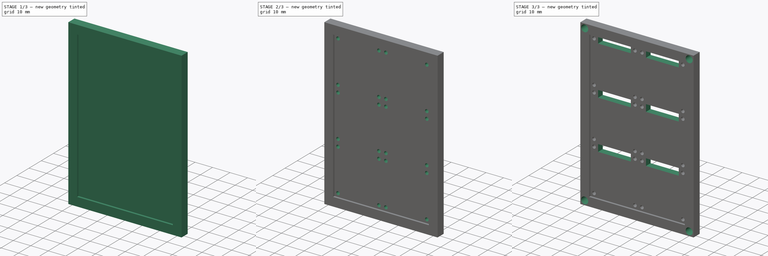
[diagram: build sequence overview — one tinted view per stage of 3, left to right]
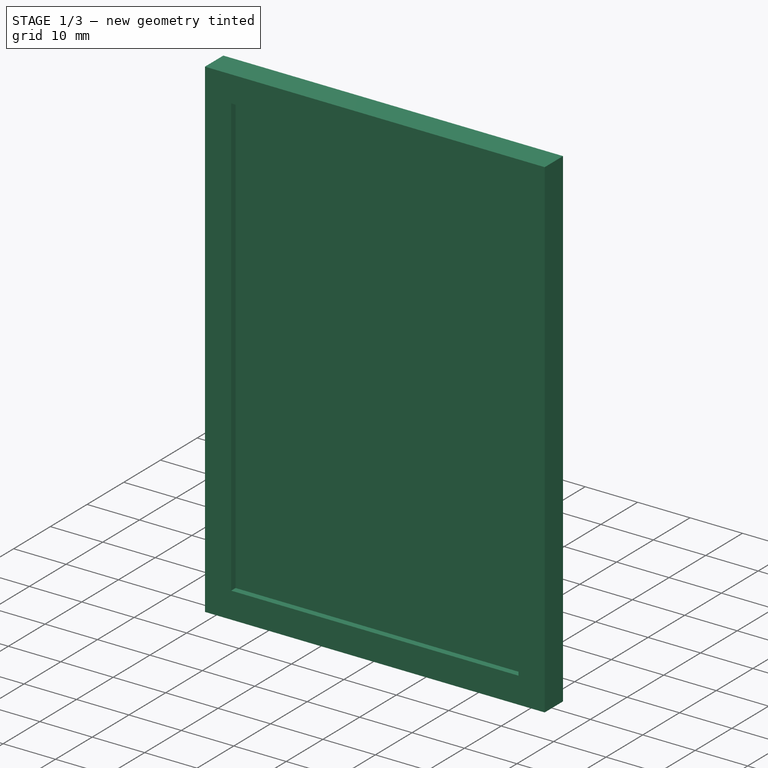
[diagram: stage 1 of 3 — iso view after this stage's code; geometry added in this stage tinted green]
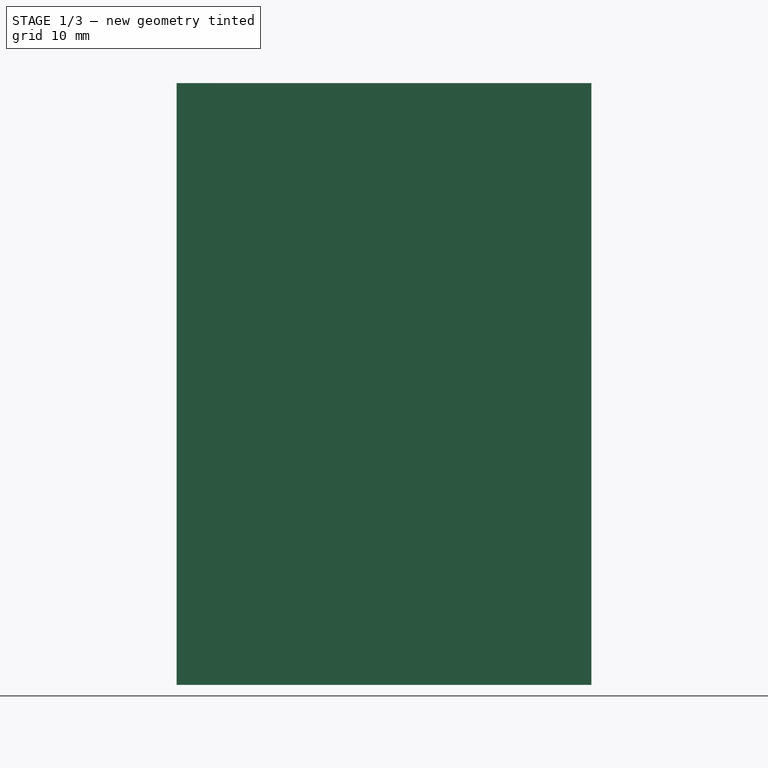
[diagram: stage 1 of 3 — front view after this stage's code; geometry added in this stage tinted green]
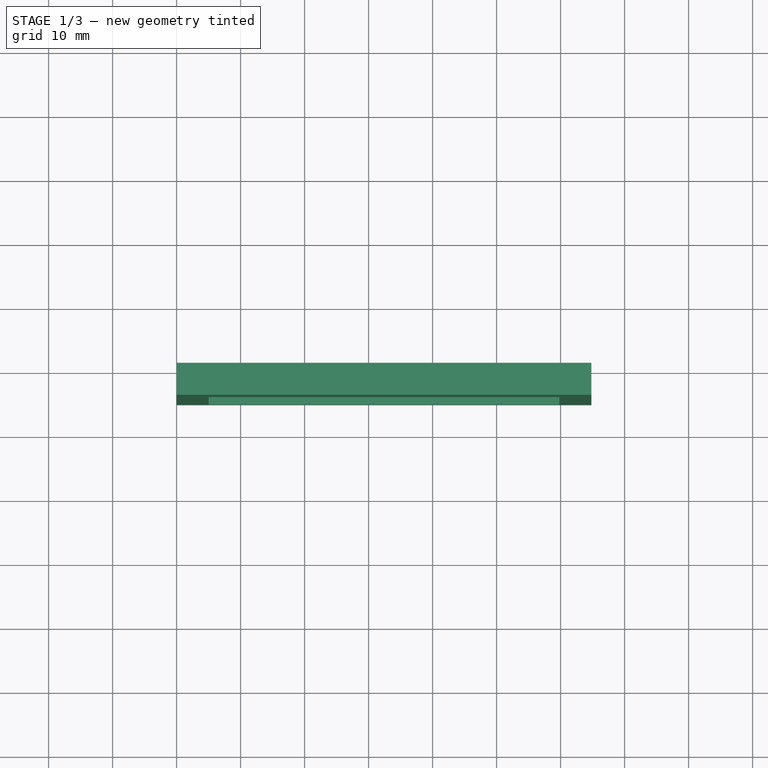
[diagram: stage 1 of 3 — top view after this stage's code; geometry added in this stage tinted green]
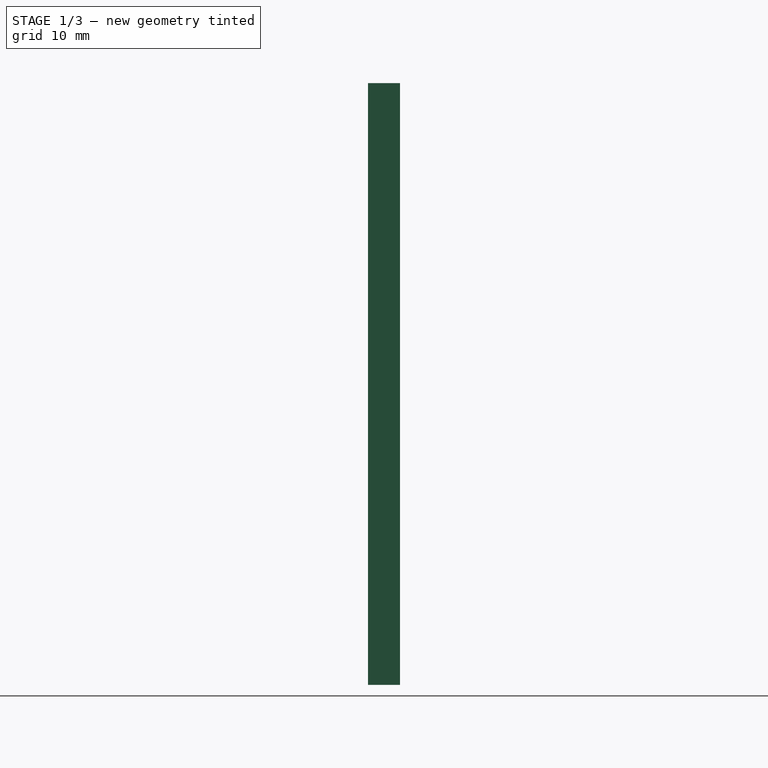
[diagram: stage 1 of 3 — right view after this stage's code; geometry added in this stage tinted green]
FCSTD DOCUMENT  (FreeCAD 0.20R29603 (Git))
Label: displayHolder
License: All rights reserved
LicenseURL: http://en.wikipedia.org/wiki/All_rights_reserved
objects: Sketcher::SketchObject×5, PartDesign::Pocket×4, PartDesign::Pad×1, PartDesign::Body×1
note: 16 computed .brp shape members not serialized (recipe doc carries the construction recipe); baked Part::Feature solids carry a one-line shape summary decoded from their .brp

FEATURE [Sketcher::SketchObject] Sketch
  FullyConstrained = true
  MapMode = 5
  Placement = pos=(0,0,0) rot=(1,0,0;1.5708rad)
  Support = -> [XZ_Plane]
  sketch-geometry (4):
    g0: LineSegment StartX=0 StartY=0 StartZ=0 EndX=64.8 EndY=0 EndZ=0
    g1: LineSegment StartX=64.8 StartY=0 StartZ=0 EndX=64.8 EndY=94 EndZ=0
    g2: LineSegment StartX=64.8 StartY=94 StartZ=0 EndX=0 EndY=94 EndZ=0
    g3: LineSegment StartX=0 StartY=94 StartZ=0 EndX=0 EndY=0 EndZ=0
  constraints (11):
    c: Coincident(g0,g1)
    c: Coincident(g1,g2)
    c: Coincident(g2,g3)
    c: Coincident(g3,g0)
    c: Horizontal(g0)
    c: Horizontal(g2)
    c: Vertical(g1)
    c: Vertical(g3)
    c: Coincident(g0,g-1)
    c: DistanceX(g2,g2) = 64.8
    c: DistanceY(g1,g1) = 94
FEATURE [PartDesign::Pad] Pad
  Direction = (0,-1,-2e-16)
  Length = 5
  Length2 = 10
  Placement = pos=(0,0,0) rot=(1,0,0;1.5708rad)
  Profile = -> Sketch
  ReferenceAxis = -> Sketch [N_Axis]
  Type = 0
FEATURE [Sketcher::SketchObject] Sketch001
  FullyConstrained = true
  MapMode = 5
  Placement = pos=(0,-5,-1.1e-15) rot=(1,0,0;1.5708rad)
  Support = -> [Pad]
  sketch-geometry (10):
    g0: LineSegment StartX=5 StartY=5 StartZ=0 EndX=32.4 EndY=5 EndZ=0
    g1: LineSegment StartX=5 StartY=33 StartZ=0 EndX=5 EndY=5 EndZ=0
    g2: LineSegment StartX=32.4 StartY=5 StartZ=0 EndX=59.8 EndY=5 EndZ=0
    g3: LineSegment StartX=59.8 StartY=5 StartZ=0 EndX=59.8 EndY=33 EndZ=0
    g4: LineSegment StartX=5 StartY=89 StartZ=0 EndX=32.4 EndY=89 EndZ=0
    g5: LineSegment StartX=5 StartY=61 StartZ=0 EndX=5 EndY=89 EndZ=0
    g6: LineSegment StartX=59.8 StartY=61 StartZ=0 EndX=59.8 EndY=89 EndZ=0
    g7: LineSegment StartX=59.8 StartY=33 StartZ=0 EndX=59.8 EndY=61 EndZ=0
    g8: LineSegment StartX=59.8 StartY=89 StartZ=0 EndX=32.4 EndY=89 EndZ=0
    g9: LineSegment StartX=5 StartY=61 StartZ=0 EndX=5 EndY=33 EndZ=0
  constraints (30):
    c: Coincident(g1,g0)
    c: Horizontal(g0)
    c: Vertical(g1)
    c: Coincident(g2,g3)
    c: Horizontal(g2)
    c: Vertical(g3)
    c: Coincident(g5,g4)
    c: Horizontal(g4)
    c: Vertical(g5)
    c: Vertical(g6)
    c: Coincident(g7,g3)
    c: DistanceY(g6,g6) = 28
    c: Equal(g6,g7)
    c: Coincident(g0,g2)
    c: Coincident(g8,g6)
    c: Coincident(g8,g4)
    c: Horizontal(g8)
    c: Vertical(g7)
    c: Coincident(g7,g6)
    c: DistanceX(g8,g8) = 27.4
    c: DistanceY(g-1,g0) = 5
    c: DistanceX(g-1,g0) = 5
    c: Equal(g6,g5)
    c: Equal(g1,g6)
    c: Equal(g8,g0)
    c: Equal(g0,g2)
    c: Equal(g2,g4)
    c: Equal(g3,g1)
    c: Coincident(g9,g5)
    c: Coincident(g9,g1)
FEATURE [PartDesign::Pocket] Pocket
  BaseFeature = -> Pad
  Direction = (0,1,2e-16)
  Length = 1.2
  Length2 = 5
  Placement = pos=(0,0,0) rot=(1,0,0;1.5708rad)
  Profile = -> Sketch001
  ReferenceAxis = -> Sketch001 [N_Axis]
  Type = 0
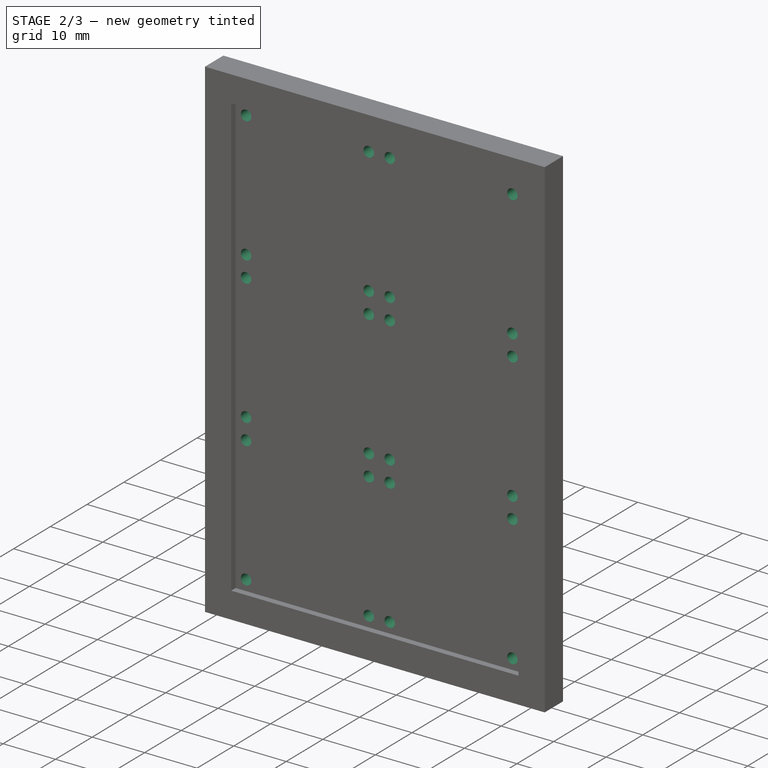
[diagram: stage 2 of 3 — iso view after this stage's code; geometry added in this stage tinted green]
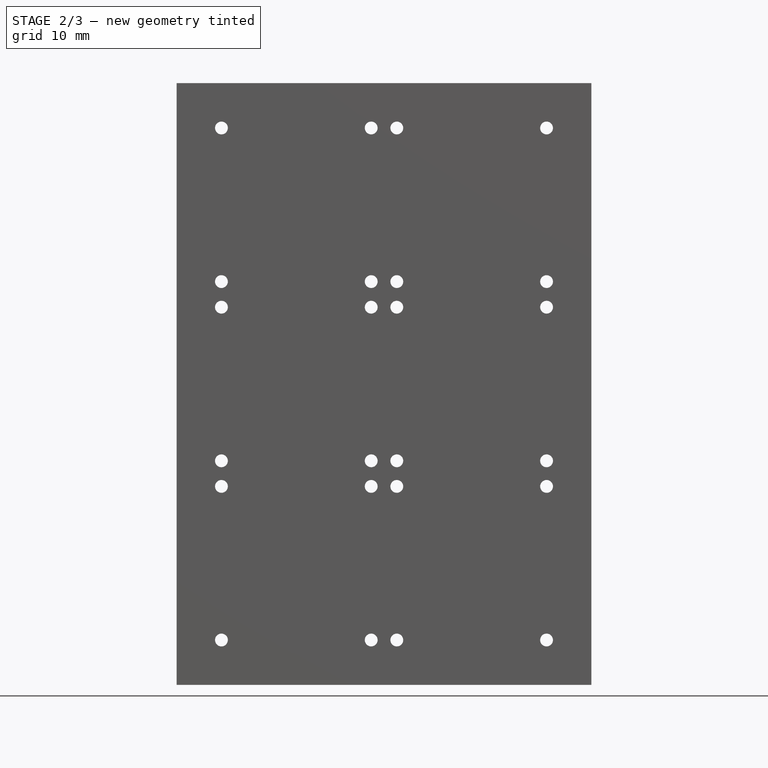
[diagram: stage 2 of 3 — front view after this stage's code; geometry added in this stage tinted green]
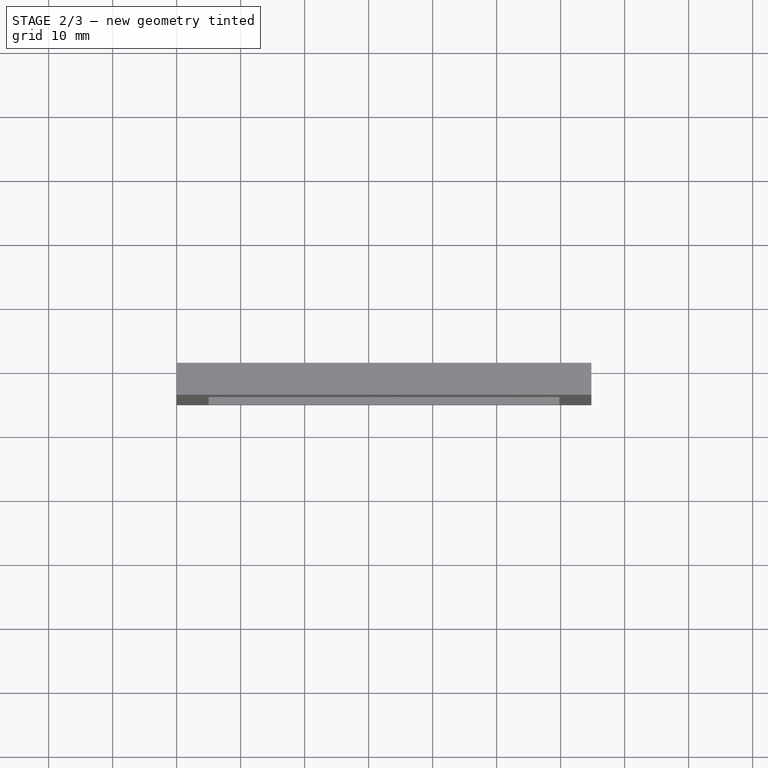
[diagram: stage 2 of 3 — top view after this stage's code; geometry added in this stage tinted green]
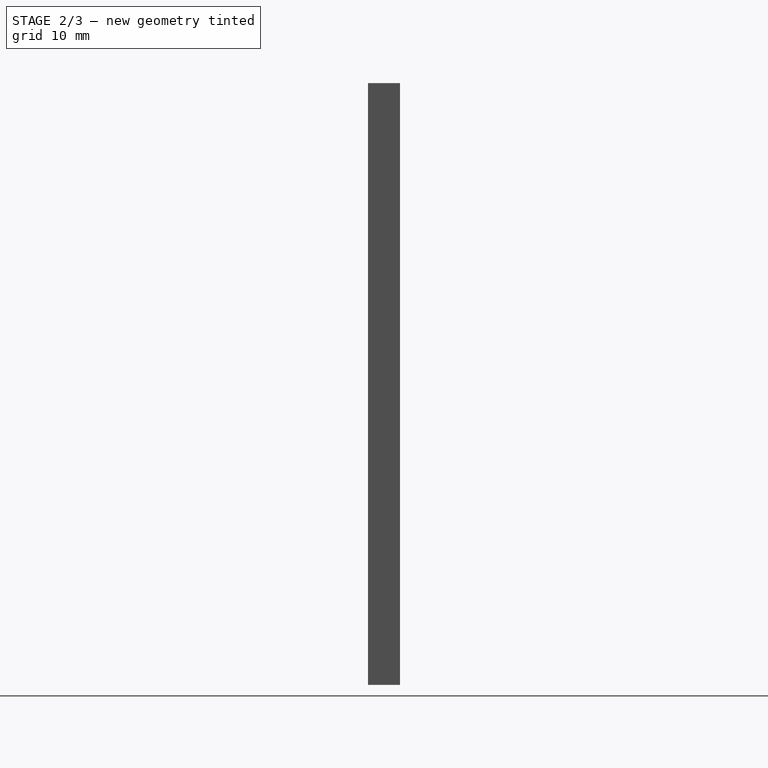
[diagram: stage 2 of 3 — right view after this stage's code; geometry added in this stage tinted green]
FEATURE [Sketcher::SketchObject] Sketch002
  ExternalGeometry = -> [Pocket]
  FullyConstrained = true
  MapMode = 5
  Placement = pos=(0,-3.8,-8e-16) rot=(1,0,0;1.5708rad)
  Support = -> [Pocket]
  sketch-geometry (48):
    g0: LineSegment StartX=7 StartY=7 StartZ=0 EndX=30.4 EndY=7 EndZ=0
    g1: LineSegment StartX=30.4 StartY=7 StartZ=0 EndX=30.4 EndY=31 EndZ=0
    g2: LineSegment StartX=30.4 StartY=31 StartZ=0 EndX=7 EndY=31 EndZ=0
    g3: LineSegment StartX=7 StartY=31 StartZ=0 EndX=7 EndY=7 EndZ=0
    g4: LineSegment StartX=34.4 StartY=7 StartZ=0 EndX=57.8 EndY=7 EndZ=0
    g5: LineSegment StartX=57.8 StartY=7 StartZ=0 EndX=57.8 EndY=31 EndZ=0
    g6: LineSegment StartX=57.8 StartY=31 StartZ=0 EndX=34.4 EndY=31 EndZ=0
    g7: LineSegment StartX=34.4 StartY=31 StartZ=0 EndX=34.4 EndY=7 EndZ=0
    g8: LineSegment StartX=34.4 StartY=35 StartZ=0 EndX=57.8 EndY=35 EndZ=0
    g9: LineSegment StartX=57.8 StartY=35 StartZ=0 EndX=57.8 EndY=59 EndZ=0
    g10: LineSegment StartX=57.8 StartY=59 StartZ=0 EndX=34.4 EndY=59 EndZ=0
    g11: LineSegment StartX=34.4 StartY=59 StartZ=0 EndX=34.4 EndY=35 EndZ=0
    g12: LineSegment StartX=34.4 StartY=63 StartZ=0 EndX=57.8 EndY=63 EndZ=0
    g13: LineSegment StartX=57.8 StartY=63 StartZ=0 EndX=57.8 EndY=87 EndZ=0
    g14: LineSegment StartX=57.8 StartY=87 StartZ=0 EndX=34.4 EndY=87 EndZ=0
    g15: LineSegment StartX=34.4 StartY=87 StartZ=0 EndX=34.4 EndY=63 EndZ=0
    g16: LineSegment StartX=30.4 StartY=63 StartZ=0 EndX=7 EndY=63 EndZ=0
    g17: LineSegment StartX=7 StartY=63 StartZ=0 EndX=7 EndY=87 EndZ=0
    g18: LineSegment StartX=7 StartY=87 StartZ=0 EndX=30.4 EndY=87 EndZ=0
    g19: LineSegment StartX=30.4 StartY=87 StartZ=0 EndX=30.4 EndY=63 EndZ=0
    g20: LineSegment StartX=30.4 StartY=35 StartZ=0 EndX=7 EndY=35 EndZ=0
    g21: LineSegment StartX=7 StartY=35 StartZ=0 EndX=7 EndY=59 EndZ=0
    g22: LineSegment StartX=7 StartY=59 StartZ=0 EndX=30.4 EndY=59 EndZ=0
    g23: LineSegment StartX=30.4 StartY=59 StartZ=0 EndX=30.4 EndY=35 EndZ=0
    g24: Circle CenterX=7 CenterY=87 CenterZ=0 NormalX=0 NormalY=0 NormalZ=1 AngleXU=0 Radius=1
    g25: Circle CenterX=30.4 CenterY=87 CenterZ=0 NormalX=0 NormalY=0 NormalZ=1 AngleXU=0 Radius=1
    g26: Circle CenterX=34.4 CenterY=87 CenterZ=0 NormalX=0 NormalY=0 NormalZ=1 AngleXU=0 Radius=1
    g27: Circle CenterX=57.8 CenterY=87 CenterZ=0 NormalX=0 NormalY=0 NormalZ=1 AngleXU=0 Radius=1
    g28: Circle CenterX=7 CenterY=63 CenterZ=0 NormalX=0 NormalY=0 NormalZ=1 AngleXU=0 Radius=1
    g29: Circle CenterX=30.4 CenterY=63 CenterZ=0 NormalX=0 NormalY=0 NormalZ=1 AngleXU=0 Radius=1
    g30: Circle CenterX=34.4 CenterY=63 CenterZ=0 NormalX=0 NormalY=0 NormalZ=1 AngleXU=0 Radius=1
    g31: Circle CenterX=57.8 CenterY=63 CenterZ=0 NormalX=0 NormalY=0 NormalZ=1 AngleXU=0 Radius=1
    g32: Circle CenterX=57.8 CenterY=59 CenterZ=0 NormalX=0 NormalY=0 NormalZ=1 AngleXU=0 Radius=1
    g33: Circle CenterX=34.4 CenterY=59 CenterZ=0 NormalX=0 NormalY=0 NormalZ=1 AngleXU=0 Radius=1
    g34: Circle CenterX=30.4 CenterY=59 CenterZ=0 NormalX=0 NormalY=0 NormalZ=1 AngleXU=0 Radius=1
    g35: Circle CenterX=7 CenterY=59 CenterZ=0 NormalX=0 NormalY=0 NormalZ=1 AngleXU=0 Radius=1
    g36: Circle CenterX=7 CenterY=35 CenterZ=0 NormalX=0 NormalY=0 NormalZ=1 AngleXU=0 Radius=1
    g37: Circle CenterX=7 CenterY=31 CenterZ=0 NormalX=0 NormalY=0 NormalZ=1 AngleXU=0 Radius=1
    g38: Circle CenterX=30.4 CenterY=31 CenterZ=0 NormalX=0 NormalY=0 NormalZ=1 AngleXU=0 Radius=1
    g39: Circle CenterX=30.4 CenterY=35 CenterZ=0 NormalX=0 NormalY=0 NormalZ=1 AngleXU=0 Radius=1
    g40: Circle CenterX=34.4 CenterY=35 CenterZ=0 NormalX=0 NormalY=0 NormalZ=1 AngleXU=0 Radius=1
    g41: Circle CenterX=34.4 CenterY=31 CenterZ=0 NormalX=0 NormalY=0 NormalZ=1 AngleXU=0 Radius=1
    g42: Circle CenterX=57.8 CenterY=31 CenterZ=0 NormalX=0 NormalY=0 NormalZ=1 AngleXU=0 Radius=1
    g43: Circle CenterX=57.8 CenterY=35 CenterZ=0 NormalX=0 NormalY=0 NormalZ=1 AngleXU=0 Radius=1
    g44: Circle CenterX=7 CenterY=7 CenterZ=0 NormalX=0 NormalY=0 NormalZ=1 AngleXU=0 Radius=1
    g45: Circle CenterX=30.4 CenterY=7 CenterZ=0 NormalX=0 NormalY=0 NormalZ=1 AngleXU=0 Radius=1
    g46: Circle CenterX=34.4 CenterY=7 CenterZ=0 NormalX=0 NormalY=0 NormalZ=1 AngleXU=0 Radius=1
    g47: Circle CenterX=57.8 CenterY=7 CenterZ=0 NormalX=0 NormalY=0 NormalZ=1 AngleXU=0 Radius=1
  constraints (120):
    c: Coincident(g0,g1)
    c: Coincident(g1,g2)
    c: Coincident(g2,g3)
    c: Coincident(g3,g0)
    c: Horizontal(g0)
    c: Horizontal(g2)
    c: Vertical(g1)
    c: Vertical(g3)
    c: Coincident(g4,g5)
    c: Coincident(g5,g6)
    c: Coincident(g6,g7)
    c: Coincident(g7,g4)
    c: Horizontal(g4)
    c: Horizontal(g6)
    c: Vertical(g5)
    c: Vertical(g7)
    c: Coincident(g8,g9)
    c: Coincident(g9,g10)
    c: Coincident(g10,g11)
    c: Coincident(g11,g8)
    c: Horizontal(g8)
    c: Horizontal(g10)
    c: Vertical(g9)
    c: Vertical(g11)
    c: Coincident(g12,g13)
    c: Coincident(g13,g14)
    c: Coincident(g14,g15)
    c: Coincident(g15,g12)
    c: Horizontal(g12)
    c: Horizontal(g14)
    c: Vertical(g13)
    c: Vertical(g15)
    c: Coincident(g16,g17)
    c: Coincident(g17,g18)
    c: Coincident(g18,g19)
    c: Coincident(g19,g16)
    c: Horizontal(g16)
    c: Horizontal(g18)
    c: Vertical(g17)
    c: Vertical(g19)
    c: Coincident(g20,g21)
    c: Coincident(g21,g22)
    c: Coincident(g22,g23)
    c: Coincident(g23,g20)
    c: Horizontal(g20)
    c: Horizontal(g22)
    c: Vertical(g21)
    c: Vertical(g23)
    c: DistanceX(g18,g18) = 23.4
    c: DistanceY(g17,g17) = 24
    c: Equal(g15,g19)
    c: Equal(g11,g23)
    c: Equal(g23,g7)
    c: Equal(g7,g1)
    c: Equal(g1,g19)
    c: Vertical(g22,g16)
    c: Vertical(g10,g12)
    c: Horizontal(g14,g18)
    c: Horizontal(g10,g22)
    c: Horizontal(g6,g1)
    c: Vertical(g20,g2)
    c: Equal(g22,g18)
    c: Equal(g6,g2)
    c: Equal(g2,g18)
    c: Equal(g18,g8)
    c: Equal(g18,g14)
    c: Vertical(g5,g8)
    c: DistanceX(g-3,g2) = 2
    c: DistanceX(g5,g-4) = 2
    c: DistanceY(g18,g-6) = 2
    c: DistanceY(g-5,g0) = 2
    c: DistanceY(g1,g20) = 4
    c: Coincident(g24,g17)
    c: Coincident(g25,g18)
    c: Coincident(g26,g14)
    c: Coincident(g27,g13)
    c: Coincident(g28,g16)
    c: Coincident(g29,g16)
    c: Coincident(g30,g12)
    c: Coincident(g31,g12)
    c: Coincident(g32,g9)
    c: Coincident(g33,g10)
    c: Coincident(g34,g22)
    c: Coincident(g35,g21)
    c: Coincident(g36,g20)
    c: Coincident(g37,g2)
    c: Coincident(g38,g1)
    c: Coincident(g39,g20)
    c: Coincident(g40,g8)
    c: Coincident(g41,g6)
    c: Coincident(g42,g5)
    c: Coincident(g43,g8)
    c: Coincident(g44,g0)
    c: Coincident(g45,g0)
    c: Coincident(g46,g4)
    c: Coincident(g47,g4)
    c: Equal(g32,g31)
    c: Equal(g34,g32)
    c: Equal(g42,g31)
    c: Equal(g43,g32)
    c: Equal(g47,g43)
    c: Equal(g46,g43)
    c: Equal(g45,g46)
    c: Equal(g45,g40)
    c: Equal(g41,g40)
    c: Equal(g38,g40)
    c: Equal(g44,g45)
    c: Equal(g30,g36)
    c: Equal(g45,g35)
    c: Equal(g41,g39)
    c: Equal(g38,g36)
    c: Equal(g30,g28)
    c: Equal(g40,g26)
    c: Equal(g40,g25)
    c: Radius(g31) = 1
    c: Equal(g37,g33)
    c: Equal(g29,g37)
    c: Equal(g37,g24)
    c: Equal(g24,g27)
    c: Equal(g27,g26)
FEATURE [PartDesign::Pocket] Pocket001
  BaseFeature = -> Pocket
  Direction = (0,1,2e-16)
  Length = 5
  Length2 = 5
  Placement = pos=(0,0,0) rot=(1,0,0;1.5708rad)
  Profile = -> Sketch002
  ReferenceAxis = -> Sketch002 [N_Axis]
  Type = 1
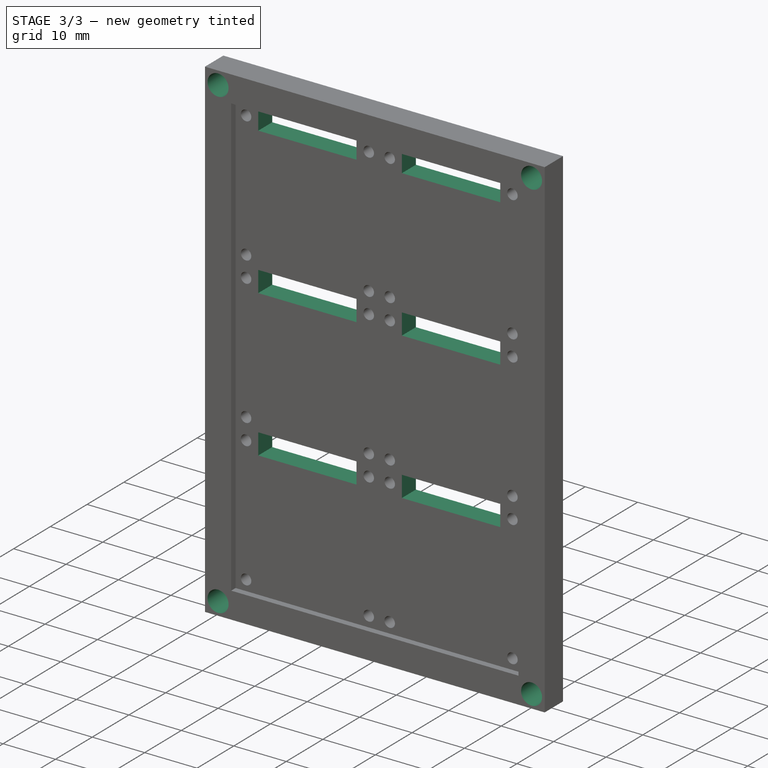
[diagram: stage 3 of 3 — iso view after this stage's code; geometry added in this stage tinted green]
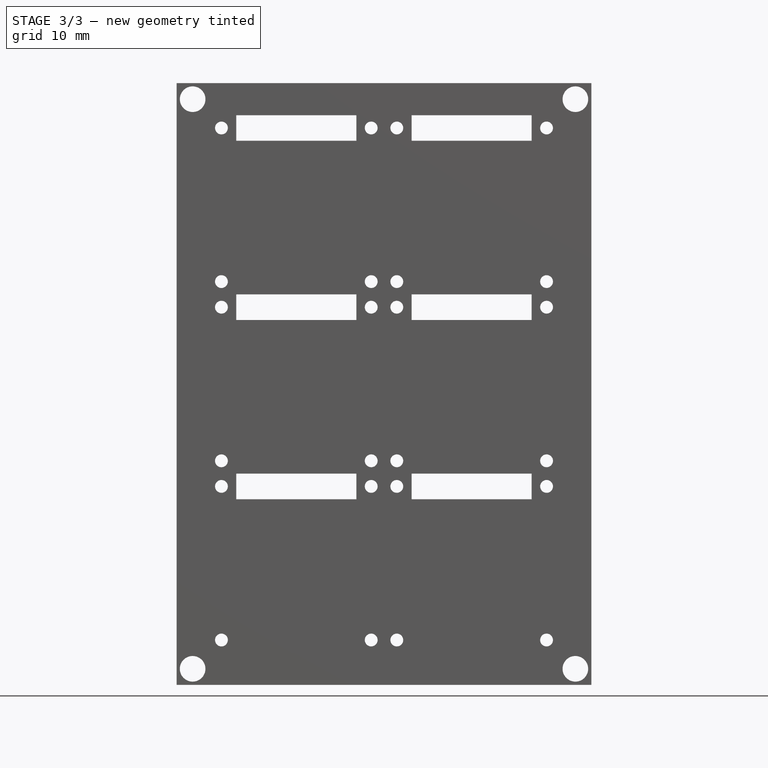
[diagram: stage 3 of 3 — front view after this stage's code; geometry added in this stage tinted green]
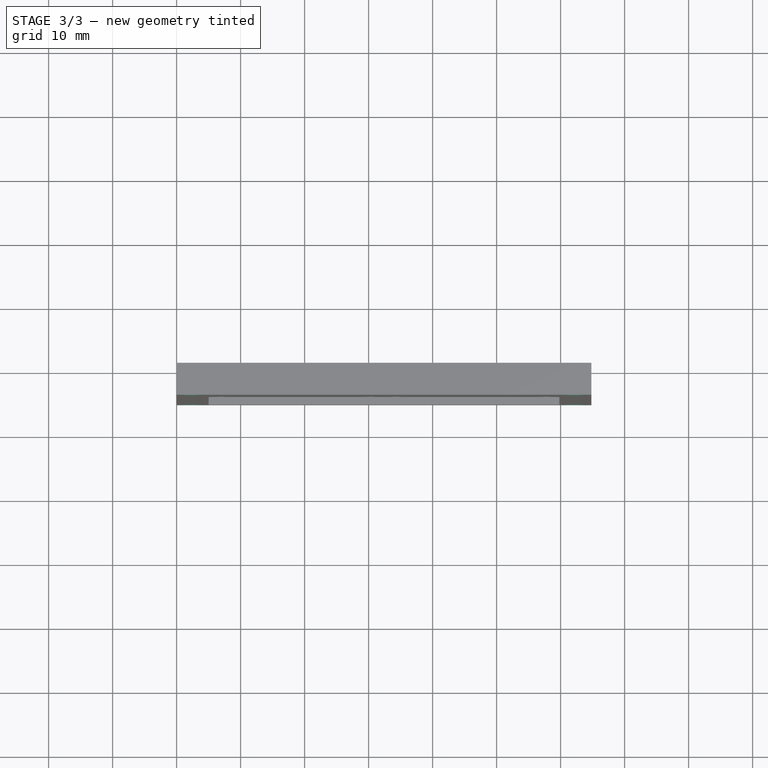
[diagram: stage 3 of 3 — top view after this stage's code; geometry added in this stage tinted green]
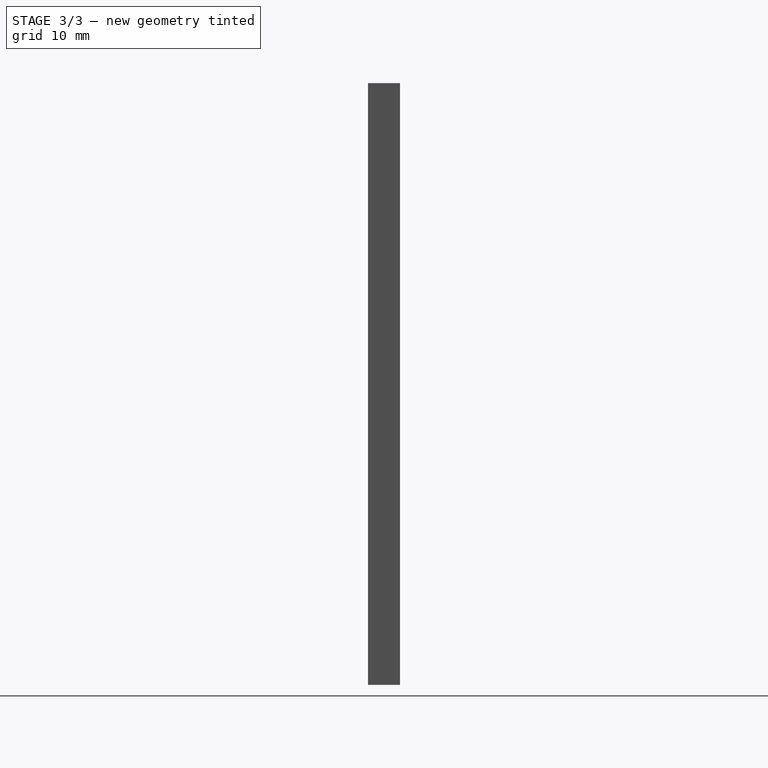
[diagram: stage 3 of 3 — right view after this stage's code; geometry added in this stage tinted green]
FEATURE [Sketcher::SketchObject] Sketch003
  ExternalGeometry = -> [Pocket001]
  FullyConstrained = true
  MapMode = 5
  Placement = pos=(0,-3.8,-8e-16) rot=(1,0,0;1.5708rad)
  Support = -> [Pocket001]
  sketch-geometry (30):
    g0: LineSegment StartX=9.325 StartY=33 StartZ=0 EndX=28.075 EndY=33 EndZ=0
    g1: LineSegment StartX=28.075 StartY=33 StartZ=0 EndX=28.075 EndY=29 EndZ=0
    g2: LineSegment StartX=28.075 StartY=29 StartZ=0 EndX=9.325 EndY=29 EndZ=0
    g3: LineSegment StartX=9.325 StartY=29 StartZ=0 EndX=9.325 EndY=33 EndZ=0
    g4: LineSegment StartX=36.725 StartY=33 StartZ=0 EndX=55.475 EndY=33 EndZ=0
    g5: LineSegment StartX=55.475 StartY=33 StartZ=0 EndX=55.475 EndY=29 EndZ=0
    g6: LineSegment StartX=55.475 StartY=29 StartZ=0 EndX=36.725 EndY=29 EndZ=0
    g7: LineSegment StartX=36.725 StartY=29 StartZ=0 EndX=36.725 EndY=33 EndZ=0
    g8: LineSegment StartX=9.325 StartY=61 StartZ=0 EndX=28.075 EndY=61 EndZ=0
    g9: LineSegment StartX=28.075 StartY=61 StartZ=0 EndX=28.075 EndY=57 EndZ=0
    g10: LineSegment StartX=28.075 StartY=57 StartZ=0 EndX=9.325 EndY=57 EndZ=0
    g11: LineSegment StartX=9.325 StartY=57 StartZ=0 EndX=9.325 EndY=61 EndZ=0
    g12: LineSegment StartX=36.725 StartY=61 StartZ=0 EndX=55.475 EndY=61 EndZ=0
    g13: LineSegment StartX=55.475 StartY=61 StartZ=0 EndX=55.475 EndY=57 EndZ=0
    g14: LineSegment StartX=55.475 StartY=57 StartZ=0 EndX=36.725 EndY=57 EndZ=0
    g15: LineSegment StartX=36.725 StartY=57 StartZ=0 EndX=36.725 EndY=61 EndZ=0
    g16: LineSegment StartX=9.325 StartY=89 StartZ=0 EndX=28.075 EndY=89 EndZ=0
    g17: LineSegment StartX=28.075 StartY=89 StartZ=0 EndX=28.075 EndY=85 EndZ=0
    g18: LineSegment StartX=28.075 StartY=85 StartZ=0 EndX=9.325 EndY=85 EndZ=0
    g19: LineSegment StartX=9.325 StartY=85 StartZ=0 EndX=9.325 EndY=89 EndZ=0
    g20: LineSegment StartX=36.725 StartY=89 StartZ=0 EndX=55.475 EndY=89 EndZ=0
    g21: LineSegment StartX=55.475 StartY=89 StartZ=0 EndX=55.475 EndY=85 EndZ=0
    g22: LineSegment StartX=55.475 StartY=85 StartZ=0 EndX=36.725 EndY=85 EndZ=0
    g23: LineSegment StartX=36.725 StartY=85 StartZ=0 EndX=36.725 EndY=89 EndZ=0
    g24: LineSegment StartX=9.325 StartY=61 StartZ=0 EndX=9.325 EndY=85 EndZ=0
    g25: LineSegment StartX=9.325 StartY=33 StartZ=0 EndX=9.325 EndY=57 EndZ=0
    g26: LineSegment StartX=7 StartY=59 StartZ=0 EndX=9.325 EndY=59 EndZ=0
    g27: LineSegment StartX=30.4 StartY=59 StartZ=0 EndX=28.075 EndY=59 EndZ=0
    g28: LineSegment StartX=34.4 StartY=59 StartZ=0 EndX=36.725 EndY=59 EndZ=0
    g29: LineSegment StartX=57.8 StartY=59 StartZ=0 EndX=55.475 EndY=59 EndZ=0
  constraints (88):
    c: Coincident(g0,g1)
    c: Coincident(g1,g2)
    c: Coincident(g2,g3)
    c: Coincident(g3,g0)
    c: Horizontal(g0)
    c: Horizontal(g2)
    c: Vertical(g1)
    c: Vertical(g3)
    c: Coincident(g4,g5)
    c: Coincident(g5,g6)
    c: Coincident(g6,g7)
    c: Coincident(g7,g4)
    c: Horizontal(g4)
    c: Horizontal(g6)
    c: Vertical(g5)
    c: Vertical(g7)
    c: Coincident(g8,g9)
    c: Coincident(g9,g10)
    c: Coincident(g10,g11)
    c: Coincident(g11,g8)
    c: Horizontal(g8)
    c: Horizontal(g10)
    c: Vertical(g9)
    c: Vertical(g11)
    c: Coincident(g12,g13)
    c: Coincident(g13,g14)
    c: Coincident(g14,g15)
    c: Coincident(g15,g12)
    c: Horizontal(g12)
    c: Horizontal(g14)
    c: Vertical(g13)
    c: Vertical(g15)
    c: Coincident(g16,g17)
    c: Coincident(g17,g18)
    c: Coincident(g18,g19)
    c: Coincident(g19,g16)
    c: Horizontal(g16)
    c: Horizontal(g18)
    c: Vertical(g17)
    c: Vertical(g19)
    c: Coincident(g20,g21)
    c: Coincident(g21,g22)
    c: Coincident(g22,g23)
    c: Coincident(g23,g20)
    c: Horizontal(g20)
    c: Horizontal(g22)
    c: Vertical(g21)
    c: Vertical(g23)
    c: Equal(g23,g17)
    c: Equal(g17,g9)
    c: Equal(g9,g15)
    c: Equal(g15,g7)
    c: Equal(g7,g1)
    c: Equal(g0,g4)
    c: Equal(g4,g12)
    c: Equal(g12,g8)
    c: Equal(g8,g16)
    c: Equal(g20,g16)
    c: Horizontal(g20,g-3)
    c: Coincident(g24,g8)
    c: Coincident(g24,g18)
    c: Coincident(g25,g0)
    c: Coincident(g25,g10)
    c: Vertical(g24)
    c: Vertical(g25)
    c: Equal(g24,g25)
    c: Horizontal(g4,g0)
    c: Horizontal(g8,g12)
    c: Vertical(g14,g4)
    c: Vertical(g22,g12)
    c: Coincident(g26,g-4)
    c: PointOnObject(g26,g11)
    c: Horizontal(g26)
    c: Coincident(g27,g-5)
    c: PointOnObject(g27,g9)
    c: Horizontal(g27)
    c: Coincident(g28,g-6)
    c: PointOnObject(g28,g15)
    c: Horizontal(g28)
    c: Coincident(g29,g-7)
    c: PointOnObject(g29,g13)
    c: Horizontal(g29)
    c: Equal(g29,g28)
    c: Equal(g28,g27)
    c: Horizontal(g-3,g16)
    c: DistanceY(g10,g8) = 4
    c: DistanceX(g12,g12) = 18.75
    c: DistanceY(g24,g24) = 24
FEATURE [PartDesign::Pocket] Pocket002
  BaseFeature = -> Pocket001
  Direction = (0,1,2e-16)
  Length = 5
  Length2 = 5
  Placement = pos=(0,0,0) rot=(1,0,0;1.5708rad)
  Profile = -> Sketch003
  ReferenceAxis = -> Sketch003 [N_Axis]
  Type = 1
FEATURE [Sketcher::SketchObject] Sketch004
  ExternalGeometry = -> [Pocket002]
  FullyConstrained = true
  MapMode = 5
  Placement = pos=(0,-5,-1.1e-15) rot=(1,0,0;1.5708rad)
  Support = -> [Pocket002]
  sketch-geometry (8):
    g0: Circle CenterX=2.5 CenterY=2.5 CenterZ=0 NormalX=0 NormalY=0 NormalZ=1 AngleXU=0 Radius=2
    g1: Circle CenterX=62.3 CenterY=2.5 CenterZ=0 NormalX=0 NormalY=0 NormalZ=1 AngleXU=0 Radius=2
    g2: Circle CenterX=2.5 CenterY=91.5 CenterZ=0 NormalX=0 NormalY=0 NormalZ=1 AngleXU=0 Radius=2
    g3: Circle CenterX=62.3 CenterY=91.5 CenterZ=0 NormalX=0 NormalY=0 NormalZ=1 AngleXU=0 Radius=2
    g4: LineSegment StartX=0 StartY=0 StartZ=0 EndX=2.5 EndY=2.5 EndZ=0
    g5: LineSegment StartX=2.5 StartY=2.5 StartZ=0 EndX=5 EndY=5 EndZ=0
    g6: LineSegment StartX=59.8 StartY=89 StartZ=0 EndX=62.3 EndY=91.5 EndZ=0
    g7: LineSegment StartX=62.3 StartY=91.5 StartZ=0 EndX=64.8 EndY=94 EndZ=0
  constraints (20):
    c: Radius(g3) = 2
    c: Coincident(g4,g-1)
    c: Coincident(g4,g0)
    c: Coincident(g5,g0)
    c: Coincident(g5,g-3)
    c: Parallel(g4,g5)
    c: Equal(g5,g4)
    c: Horizontal(g1,g0)
    c: Horizontal(g2,g3)
    c: Vertical(g3,g1)
    c: Vertical(g0,g2)
    c: Equal(g3,g2)
    c: Equal(g0,g1)
    c: Equal(g1,g3)
    c: Coincident(g6,g-5)
    c: Coincident(g6,g3)
    c: Coincident(g7,g3)
    c: Coincident(g7,g-4)
    c: Equal(g6,g7)
    c: Parallel(g7,g6)
FEATURE [PartDesign::Pocket] Pocket003
  BaseFeature = -> Pocket002
  Direction = (0,1,2e-16)
  Length = 5
  Length2 = 5
  Placement = pos=(0,0,0) rot=(1,0,0;1.5708rad)
  Profile = -> Sketch004
  ReferenceAxis = -> Sketch004 [N_Axis]
  Type = 1
FEATURE [PartDesign::Body] Body
  Group = -> [Sketch,Pad,Sketch001,Pocket,Sketch002,Pocket001,Sketch003,Pocket002,Sketch004,Pocket003]
  Origin = -> Origin
  Tip = -> Pocket003
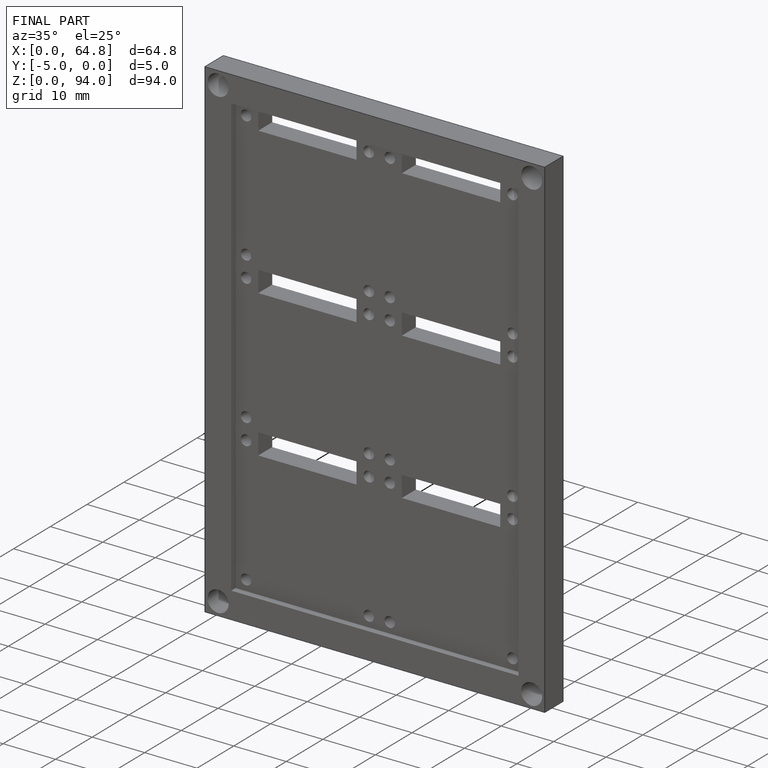
[diagram: finished part — iso view with bounding-box wireframe]
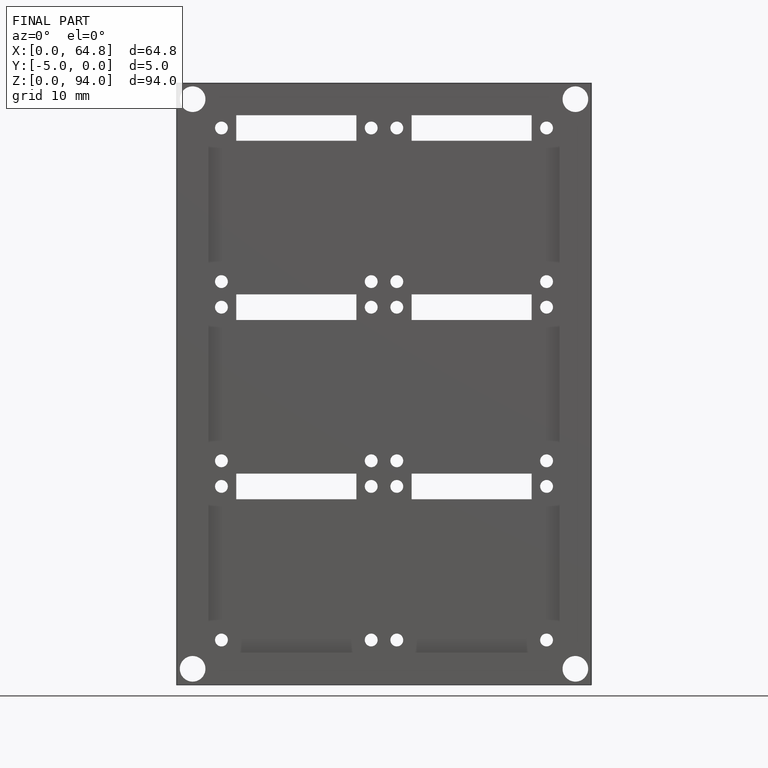
[diagram: finished part — front view with bounding-box wireframe]
